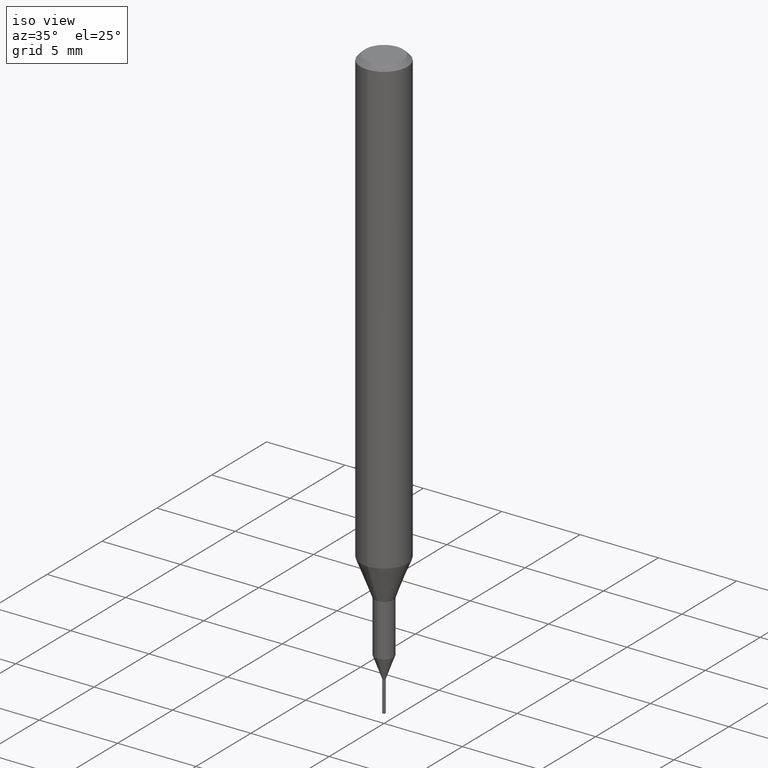
[diagram: clean part render]
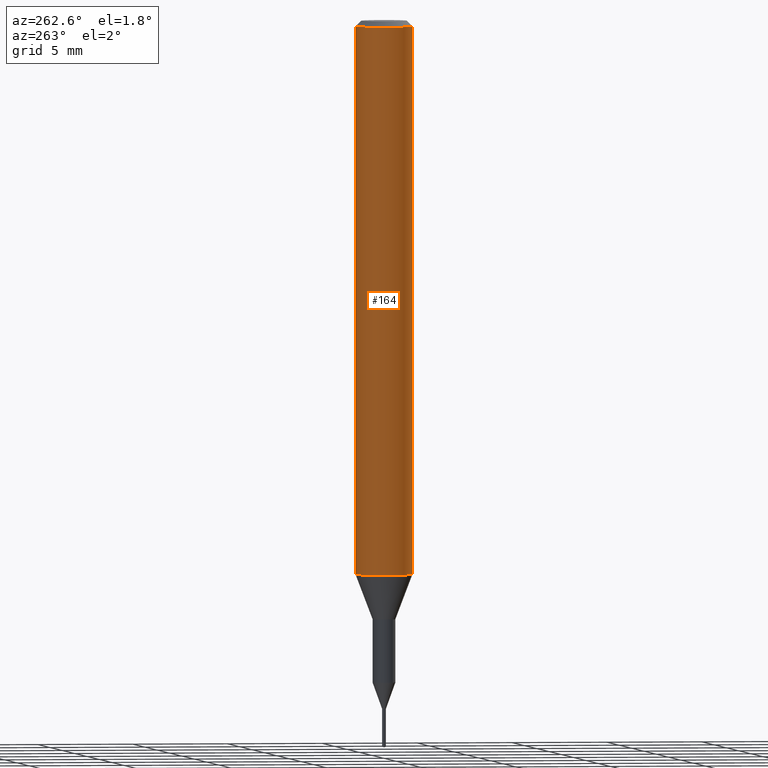
[diagram: tour spotlight — one face highlighted and labeled with its STEP entity id]
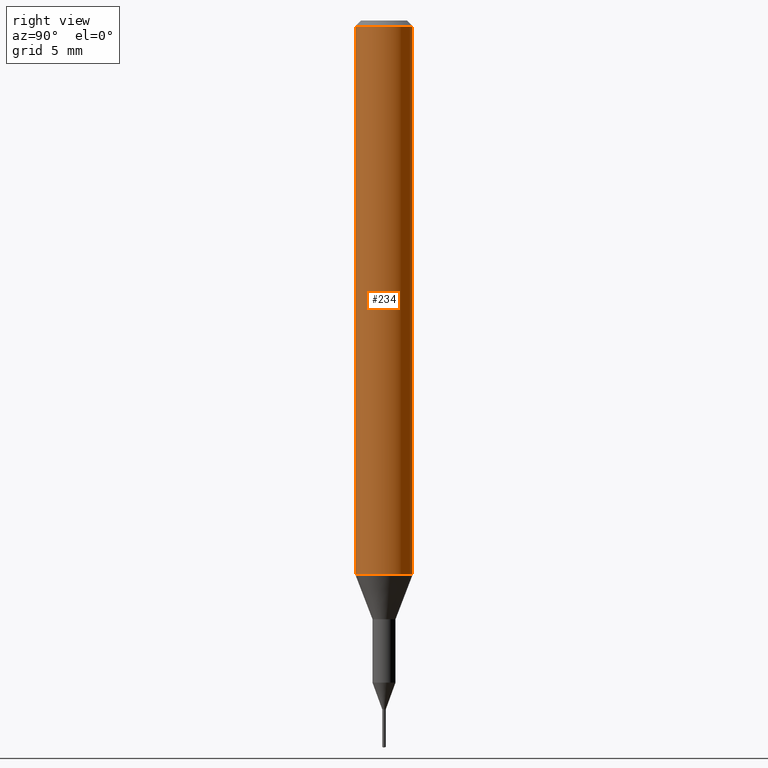
[diagram: tour spotlight — one face highlighted and labeled with its STEP entity id]
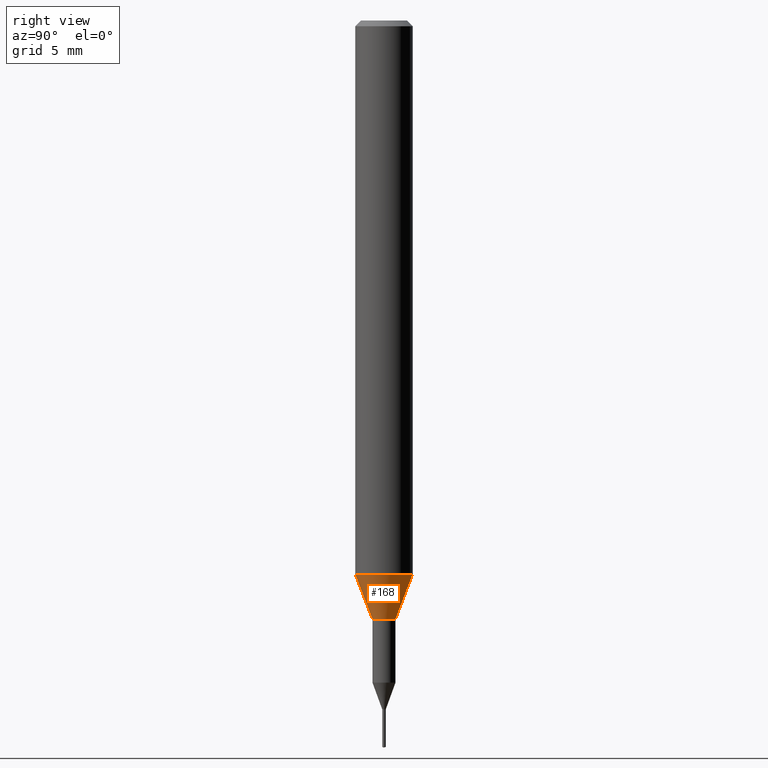
[diagram: tour spotlight — one face highlighted and labeled with its STEP entity id]
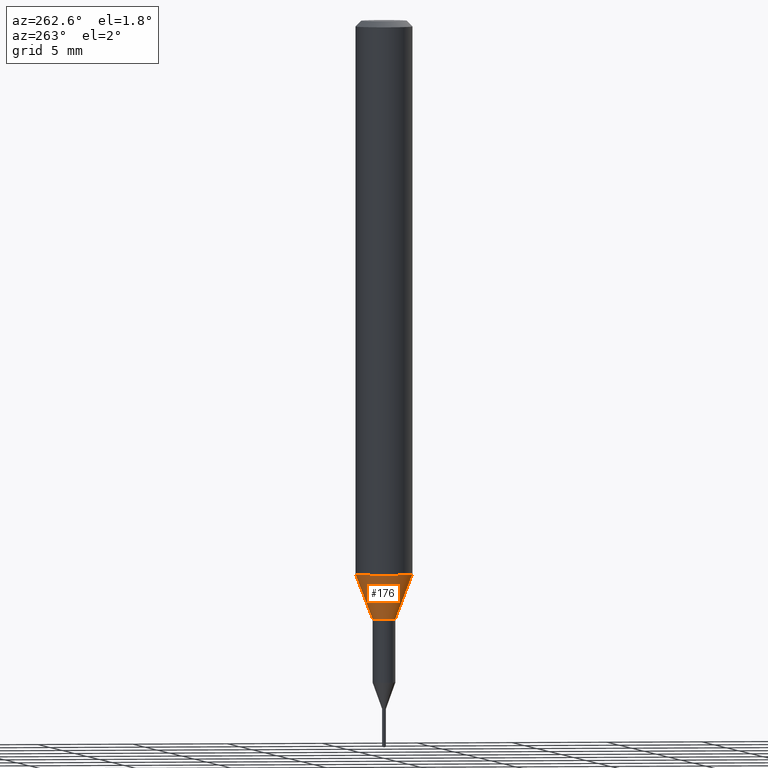
[diagram: tour spotlight — one face highlighted and labeled with its STEP entity id]
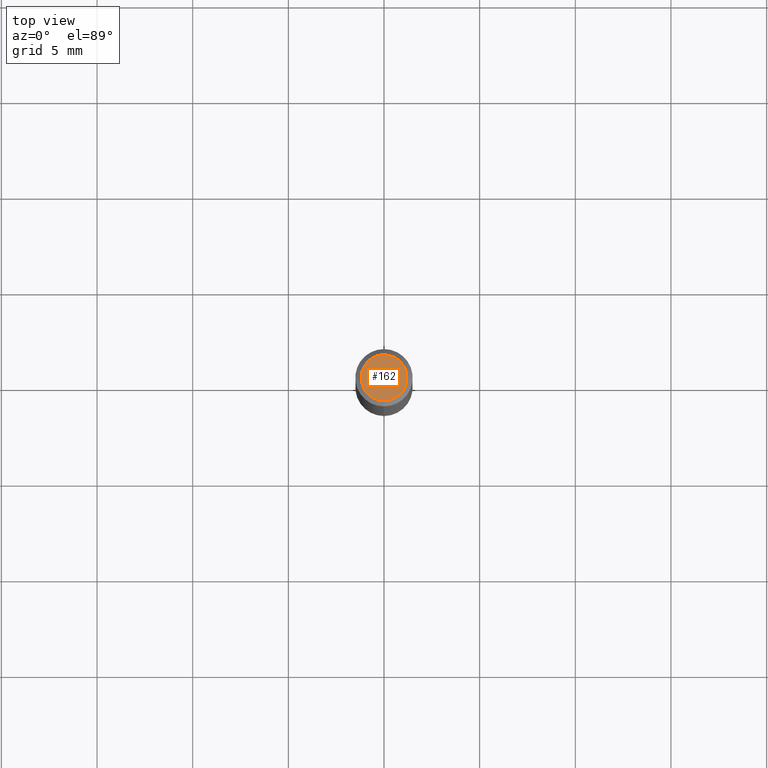
[diagram: tour spotlight — one face highlighted and labeled with its STEP entity id]
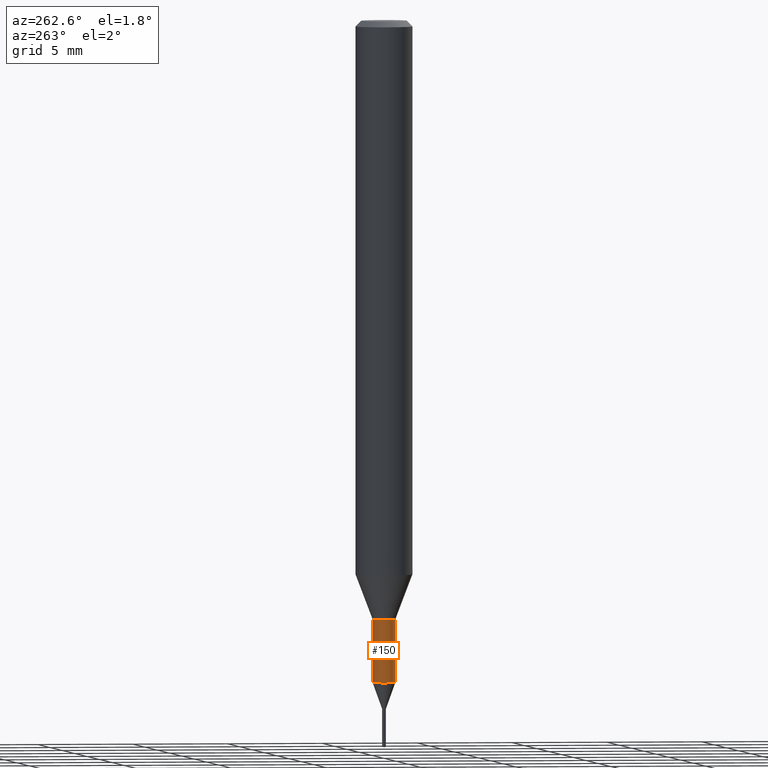
[diagram: tour spotlight — one face highlighted and labeled with its STEP entity id]
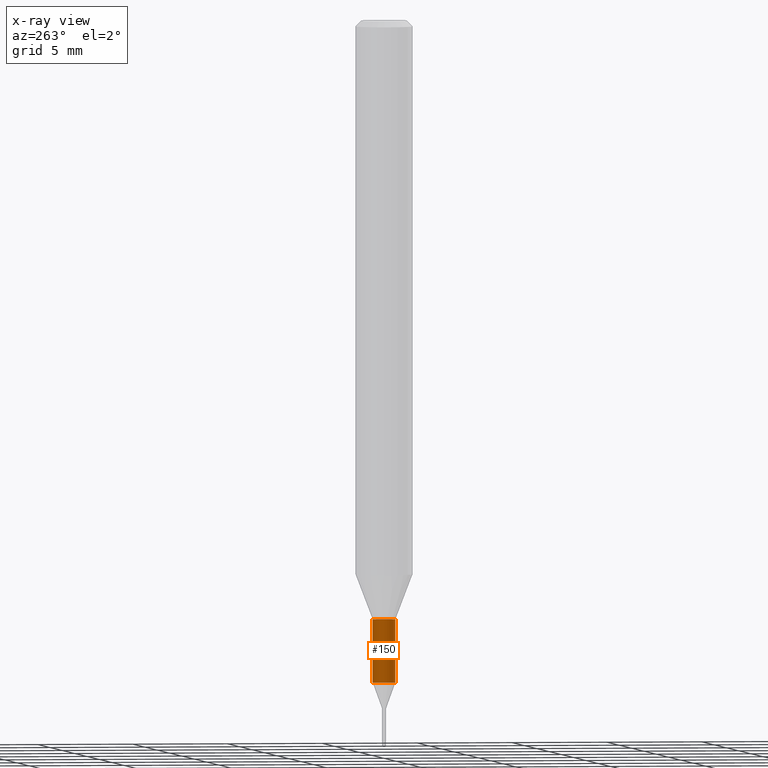
[diagram: x-ray of the same camera — body ghosted, this tour face saturated]
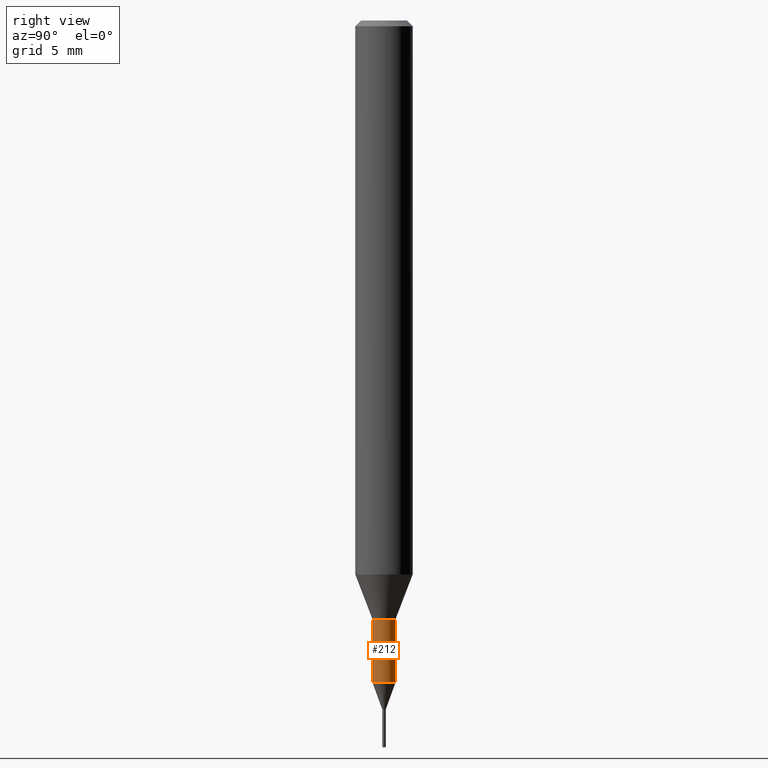
[diagram: tour spotlight — one face highlighted and labeled with its STEP entity id]
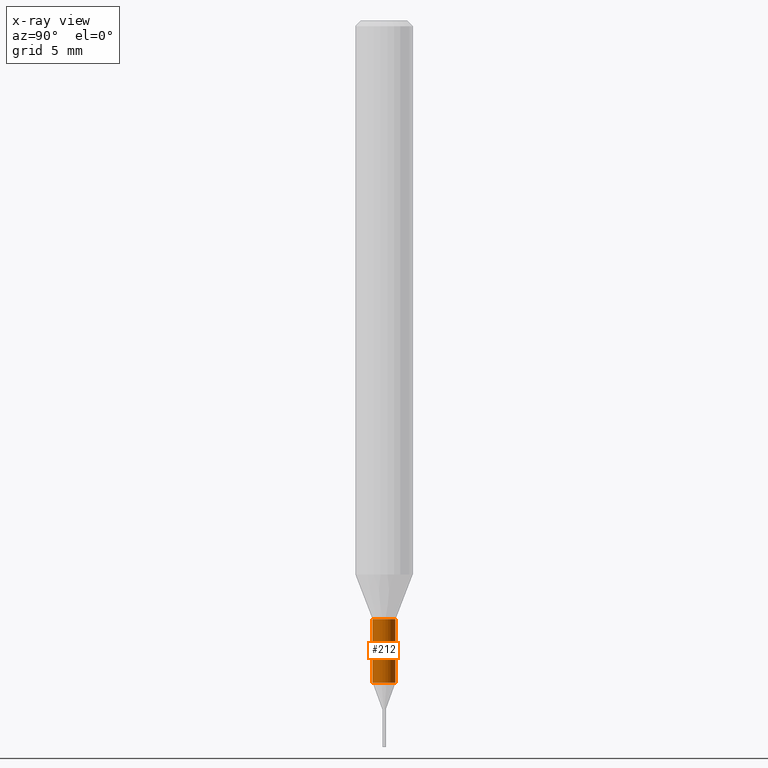
[diagram: x-ray of the same camera — body ghosted, this tour face saturated]
A machine part: a face-by-face anatomy tour. The part has 20 B-rep faces; the first image is the clean iso view, then the 7 largest visible faces are spotlighted one at a time (largest first), each with its STEP entity span.

Face 1 — auxiliary view, entity #164. In plain terms, the highlighted cylindrical surface (edge-blend (fillet) strip) has radius 1.5 mm, axis along (-0, -0, 1).
Definition (entity closure, byte-faithful):
#122=VERTEX_POINT('',#299);
#152=EDGE_CURVE('',#238,#122,#334,.T.);
#164=ADVANCED_FACE('',(#347),#348,.T.);
#188=EDGE_CURVE('',#214,#260,#375,.T.);
#204=EDGE_CURVE('',#214,#238,#393,.T.);
#214=VERTEX_POINT('',#404);
#216=EDGE_CURVE('',#122,#260,#406,.T.);
#238=VERTEX_POINT('',#431);
#260=VERTEX_POINT('',#458);
#299=CARTESIAN_POINT('',(0.0,1.5,-0.300000000000001));
#334=CIRCLE('',#538,1.5);
#347=FACE_OUTER_BOUND('',#552,.T.);
#348=CYLINDRICAL_SURFACE('',#553,1.5);
#375=CIRCLE('',#588,1.5);
#393=LINE('',#612,#613);
#404=CARTESIAN_POINT('',(1.83690953073357E-016,-1.5,-28.955));
#406=LINE('',#630,#631);
#431=CARTESIAN_POINT('',(1.83690953073357E-016,-1.5,-0.300000000000001));
#458=CARTESIAN_POINT('',(0.0,1.5,-28.955));
#538=AXIS2_PLACEMENT_3D('',#758,#759,#760);
#552=EDGE_LOOP('',(#771,#772,#773,#774));
#553=AXIS2_PLACEMENT_3D('',#775,#776,#777);
#588=AXIS2_PLACEMENT_3D('',#817,#818,#819);
#612=CARTESIAN_POINT('',(1.83690953073357E-016,-1.5,-14.6275));
#613=VECTOR('',#839,1.0);
#630=CARTESIAN_POINT('',(-1.83690953073357E-016,1.5,-14.6275));
#631=VECTOR('',#852,1.0);
#758=CARTESIAN_POINT('',(0.0,0.0,-0.300000000000001));
#759=DIRECTION('',(0.0,0.0,-1.0));
#760=DIRECTION('',(0.0,1.0,0.0));
#771=ORIENTED_EDGE('',*,*,#216,.T.);
#772=ORIENTED_EDGE('',*,*,#188,.F.);
#773=ORIENTED_EDGE('',*,*,#204,.T.);
#774=ORIENTED_EDGE('',*,*,#152,.T.);
#775=CARTESIAN_POINT('',(0.0,0.0,-14.6275));
#776=DIRECTION('',(-0.0,-0.0,1.0));
#777=DIRECTION('',(0.0,1.0,0.0));
#817=CARTESIAN_POINT('',(0.0,0.0,-28.955));
#818=DIRECTION('',(0.0,0.0,-1.0));
#819=DIRECTION('',(0.0,1.0,0.0));
#839=DIRECTION('',(-0.0,-0.0,1.0));
#852=DIRECTION('',(0.0,0.0,-1.0));

Face 2 — right view, entity #234. In plain terms, the highlighted cylindrical surface (edge-blend (fillet) strip) has radius 1.5 mm, axis along (-0, -0, 1).
Definition (entity closure, byte-faithful):
#122=VERTEX_POINT('',#299);
#160=EDGE_CURVE('',#122,#238,#342,.T.);
#166=EDGE_CURVE('',#260,#214,#350,.T.);
#204=EDGE_CURVE('',#214,#238,#393,.T.);
#214=VERTEX_POINT('',#404);
#216=EDGE_CURVE('',#122,#260,#406,.T.);
#234=ADVANCED_FACE('',(#426),#427,.T.);
#238=VERTEX_POINT('',#431);
#260=VERTEX_POINT('',#458);
#299=CARTESIAN_POINT('',(0.0,1.5,-0.300000000000001));
#342=CIRCLE('',#547,1.5);
#350=CIRCLE('',#556,1.5);
#393=LINE('',#612,#613);
#404=CARTESIAN_POINT('',(1.83690953073357E-016,-1.5,-28.955));
#406=LINE('',#630,#631);
#426=FACE_OUTER_BOUND('',#658,.T.);
#427=CYLINDRICAL_SURFACE('',#659,1.5);
#431=CARTESIAN_POINT('',(1.83690953073357E-016,-1.5,-0.300000000000001));
#458=CARTESIAN_POINT('',(0.0,1.5,-28.955));
#547=AXIS2_PLACEMENT_3D('',#761,#762,#763);
#556=AXIS2_PLACEMENT_3D('',#778,#779,#780);
#612=CARTESIAN_POINT('',(1.83690953073357E-016,-1.5,-14.6275));
#613=VECTOR('',#839,1.0);
#630=CARTESIAN_POINT('',(-1.83690953073357E-016,1.5,-14.6275));
#631=VECTOR('',#852,1.0);
#658=EDGE_LOOP('',(#876,#877,#878,#879));
#659=AXIS2_PLACEMENT_3D('',#880,#881,#882);
#761=CARTESIAN_POINT('',(0.0,0.0,-0.300000000000001));
#762=DIRECTION('',(0.0,0.0,-1.0));
#763=DIRECTION('',(0.0,1.0,0.0));
#778=CARTESIAN_POINT('',(0.0,0.0,-28.955));
#779=DIRECTION('',(0.0,0.0,-1.0));
#780=DIRECTION('',(0.0,1.0,0.0));
#839=DIRECTION('',(-0.0,-0.0,1.0));
#852=DIRECTION('',(0.0,0.0,-1.0));
#876=ORIENTED_EDGE('',*,*,#216,.F.);
#877=ORIENTED_EDGE('',*,*,#160,.T.);
#878=ORIENTED_EDGE('',*,*,#204,.F.);
#879=ORIENTED_EDGE('',*,*,#166,.F.);
#880=CARTESIAN_POINT('',(0.0,0.0,-14.6275));
#881=DIRECTION('',(-0.0,-0.0,1.0));
#882=DIRECTION('',(0.0,1.0,0.0));

Face 3 — right view, entity #168. In plain terms, the highlighted conical surface has half-angle 20.997 deg.
Definition (entity closure, byte-faithful):
#128=EDGE_CURVE('',#148,#136,#305,.T.);
#136=VERTEX_POINT('',#315);
#148=VERTEX_POINT('',#329);
#166=EDGE_CURVE('',#260,#214,#350,.T.);
#168=ADVANCED_FACE('',(#352),#353,.T.);
#184=EDGE_CURVE('',#136,#214,#370,.T.);
#210=EDGE_CURVE('',#260,#148,#399,.T.);
#214=VERTEX_POINT('',#404);
#260=VERTEX_POINT('',#458);
#305=CIRCLE('',#503,0.6);
#315=CARTESIAN_POINT('',(7.34763812293426E-017,-0.6,-31.3));
#329=CARTESIAN_POINT('',(0.0,0.6,-31.3));
#350=CIRCLE('',#556,1.5);
#352=FACE_OUTER_BOUND('',#558,.T.);
#353=CONICAL_SURFACE('',#559,1.05,0.366459241971866);
#370=LINE('',#581,#582);
#399=LINE('',#621,#622);
#404=CARTESIAN_POINT('',(1.83690953073357E-016,-1.5,-28.955));
#458=CARTESIAN_POINT('',(0.0,1.5,-28.955));
#503=AXIS2_PLACEMENT_3D('',#719,#720,#721);
#556=AXIS2_PLACEMENT_3D('',#778,#779,#780);
#558=EDGE_LOOP('',(#782,#783,#784,#785));
#559=AXIS2_PLACEMENT_3D('',#786,#787,#788);
#581=CARTESIAN_POINT('',(1.2858366715135E-016,-1.05,-30.1275));
#582=VECTOR('',#808,1.0);
#621=CARTESIAN_POINT('',(-1.2858366715135E-016,1.05,-30.1275));
#622=VECTOR('',#843,1.0);
#719=CARTESIAN_POINT('',(0.0,0.0,-31.3));
#720=DIRECTION('',(0.0,0.0,-1.0));
#721=DIRECTION('',(0.0,1.0,0.0));
#778=CARTESIAN_POINT('',(0.0,0.0,-28.955));
#779=DIRECTION('',(0.0,0.0,-1.0));
#780=DIRECTION('',(0.0,1.0,0.0));
#782=ORIENTED_EDGE('',*,*,#210,.F.);
#783=ORIENTED_EDGE('',*,*,#166,.T.);
#784=ORIENTED_EDGE('',*,*,#184,.F.);
#785=ORIENTED_EDGE('',*,*,#128,.F.);
#786=CARTESIAN_POINT('',(0.0,0.0,-30.1275));
#787=DIRECTION('',(-0.0,-0.0,1.0));
#788=DIRECTION('',(0.0,1.0,0.0));
#808=DIRECTION('',(4.38791184365088E-017,-0.358312026550805,0.93360189140182));
#843=DIRECTION('',(4.38791184365088E-017,-0.358312026550805,-0.93360189140182));

Face 4 — auxiliary view, entity #176. In plain terms, the highlighted conical surface has half-angle 20.997 deg.
Definition (entity closure, byte-faithful):
#136=VERTEX_POINT('',#315);
#148=VERTEX_POINT('',#329);
#176=ADVANCED_FACE('',(#361),#362,.T.);
#184=EDGE_CURVE('',#136,#214,#370,.T.);
#188=EDGE_CURVE('',#214,#260,#375,.T.);
#210=EDGE_CURVE('',#260,#148,#399,.T.);
#214=VERTEX_POINT('',#404);
#260=VERTEX_POINT('',#458);
#266=EDGE_CURVE('',#136,#148,#464,.T.);
#315=CARTESIAN_POINT('',(7.34763812293426E-017,-0.6,-31.3));
#329=CARTESIAN_POINT('',(0.0,0.6,-31.3));
#361=FACE_OUTER_BOUND('',#571,.T.);
#362=CONICAL_SURFACE('',#572,1.05,0.366459241971866);
#370=LINE('',#581,#582);
#375=CIRCLE('',#588,1.5);
#399=LINE('',#621,#622);
#404=CARTESIAN_POINT('',(1.83690953073357E-016,-1.5,-28.955));
#458=CARTESIAN_POINT('',(0.0,1.5,-28.955));
#464=CIRCLE('',#703,0.6);
#571=EDGE_LOOP('',(#797,#798,#799,#800));
#572=AXIS2_PLACEMENT_3D('',#801,#802,#803);
#581=CARTESIAN_POINT('',(1.2858366715135E-016,-1.05,-30.1275));
#582=VECTOR('',#808,1.0);
#588=AXIS2_PLACEMENT_3D('',#817,#818,#819);
#621=CARTESIAN_POINT('',(-1.2858366715135E-016,1.05,-30.1275));
#622=VECTOR('',#843,1.0);
#703=AXIS2_PLACEMENT_3D('',#932,#933,#934);
#797=ORIENTED_EDGE('',*,*,#210,.T.);
#798=ORIENTED_EDGE('',*,*,#266,.F.);
#799=ORIENTED_EDGE('',*,*,#184,.T.);
#800=ORIENTED_EDGE('',*,*,#188,.T.);
#801=CARTESIAN_POINT('',(0.0,0.0,-30.1275));
#802=DIRECTION('',(-0.0,-0.0,1.0));
#803=DIRECTION('',(0.0,1.0,0.0));
#808=DIRECTION('',(4.38791184365088E-017,-0.358312026550805,0.93360189140182));
#817=CARTESIAN_POINT('',(0.0,0.0,-28.955));
#818=DIRECTION('',(0.0,0.0,-1.0));
#819=DIRECTION('',(0.0,1.0,0.0));
#843=DIRECTION('',(4.38791184365088E-017,-0.358312026550805,-0.93360189140182));
#932=CARTESIAN_POINT('',(0.0,0.0,-31.3));
#933=DIRECTION('',(0.0,0.0,-1.0));
#934=DIRECTION('',(0.0,1.0,0.0));

Face 5 — top view, entity #162. In plain terms, the highlighted planar face has unit normal (-0, 0, 1).
Definition (entity closure, byte-faithful):
#118=VERTEX_POINT('',#295);
#138=EDGE_CURVE('',#264,#118,#317,.T.);
#162=ADVANCED_FACE('',(#344),#345,.T.);
#264=VERTEX_POINT('',#462);
#268=EDGE_CURVE('',#118,#264,#466,.T.);
#295=CARTESIAN_POINT('',(1.46952762458685E-016,-1.2,0.0));
#317=CIRCLE('',#518,1.2);
#344=FACE_OUTER_BOUND('',#549,.T.);
#345=PLANE('',#550);
#462=CARTESIAN_POINT('',(0.0,1.2,0.0));
#466=CIRCLE('',#706,1.2);
#518=AXIS2_PLACEMENT_3D('',#731,#732,#733);
#549=EDGE_LOOP('',(#765,#766));
#550=AXIS2_PLACEMENT_3D('',#767,#768,#769);
#706=AXIS2_PLACEMENT_3D('',#935,#936,#937);
#731=CARTESIAN_POINT('',(0.0,0.0,0.0));
#732=DIRECTION('',(0.0,0.0,-1.0));
#733=DIRECTION('',(0.0,1.0,0.0));
#765=ORIENTED_EDGE('',*,*,#138,.F.);
#766=ORIENTED_EDGE('',*,*,#268,.F.);
#767=CARTESIAN_POINT('',(0.0,0.6,0.0));
#768=DIRECTION('',(-0.0,0.0,1.0));
#769=DIRECTION('',(0.0,-1.0,0.0));
#935=CARTESIAN_POINT('',(0.0,0.0,0.0));
#936=DIRECTION('',(0.0,0.0,-1.0));
#937=DIRECTION('',(0.0,1.0,0.0));

Face 6 — auxiliary view, entity #150. An x-ray twin of the same camera follows (body ghosted, this face saturated) — the face is partly hidden behind the body. In plain terms, the highlighted cylindrical surface (edge-blend (fillet) strip) has radius 0.5999 mm, axis along (-0, -0, 1).
Definition (entity closure, byte-faithful):
#150=ADVANCED_FACE('',(#331),#332,.T.);
#154=VERTEX_POINT('',#336);
#158=VERTEX_POINT('',#340);
#200=EDGE_CURVE('',#230,#154,#389,.T.);
#218=EDGE_CURVE('',#236,#230,#408,.T.);
#230=VERTEX_POINT('',#421);
#236=VERTEX_POINT('',#429);
#240=EDGE_CURVE('',#158,#154,#433,.T.);
#262=EDGE_CURVE('',#158,#236,#460,.T.);
#331=FACE_OUTER_BOUND('',#534,.T.);
#332=CYLINDRICAL_SURFACE('',#535,0.59995);
#336=CARTESIAN_POINT('',(0.0,0.59995,-34.613));
#340=CARTESIAN_POINT('',(7.34702581975735E-017,-0.59995,-34.613));
#389=LINE('',#604,#605);
#408=CIRCLE('',#634,0.59995);
#421=CARTESIAN_POINT('',(0.0,0.59995,-31.3));
#429=CARTESIAN_POINT('',(7.34702581975735E-017,-0.59995,-31.3));
#433=CIRCLE('',#666,0.59995);
#460=LINE('',#697,#698);
#534=EDGE_LOOP('',(#751,#752,#753,#754));
#535=AXIS2_PLACEMENT_3D('',#755,#756,#757);
#604=CARTESIAN_POINT('',(-7.34702581975735E-017,0.59995,-32.9565));
#605=VECTOR('',#837,1.0);
#634=AXIS2_PLACEMENT_3D('',#853,#854,#855);
#666=AXIS2_PLACEMENT_3D('',#883,#884,#885);
#697=CARTESIAN_POINT('',(7.34702581975735E-017,-0.59995,-32.9565));
#698=VECTOR('',#931,1.0);
#751=ORIENTED_EDGE('',*,*,#200,.T.);
#752=ORIENTED_EDGE('',*,*,#240,.F.);
#753=ORIENTED_EDGE('',*,*,#262,.T.);
#754=ORIENTED_EDGE('',*,*,#218,.T.);
#755=CARTESIAN_POINT('',(0.0,0.0,-32.9565));
#756=DIRECTION('',(-0.0,-0.0,1.0));
#757=DIRECTION('',(0.0,1.0,0.0));
#837=DIRECTION('',(0.0,0.0,-1.0));
#853=CARTESIAN_POINT('',(0.0,0.0,-31.3));
#854=DIRECTION('',(0.0,0.0,-1.0));
#855=DIRECTION('',(0.0,1.0,0.0));
#883=CARTESIAN_POINT('',(0.0,0.0,-34.613));
#884=DIRECTION('',(0.0,0.0,-1.0));
#885=DIRECTION('',(0.0,1.0,0.0));
#931=DIRECTION('',(-0.0,-0.0,1.0));

Face 7 — right view, entity #212. An x-ray twin of the same camera follows (body ghosted, this face saturated) — the face is partly hidden behind the body. In plain terms, the highlighted cylindrical surface (edge-blend (fillet) strip) has radius 0.5999 mm, axis along (-0, -0, 1).
Definition (entity closure, byte-faithful):
#154=VERTEX_POINT('',#336);
#158=VERTEX_POINT('',#340);
#174=EDGE_CURVE('',#154,#158,#359,.T.);
#200=EDGE_CURVE('',#230,#154,#389,.T.);
#208=EDGE_CURVE('',#230,#236,#397,.T.);
#212=ADVANCED_FACE('',(#401),#402,.T.);
#230=VERTEX_POINT('',#421);
#236=VERTEX_POINT('',#429);
#262=EDGE_CURVE('',#158,#236,#460,.T.);
#336=CARTESIAN_POINT('',(0.0,0.59995,-34.613));
#340=CARTESIAN_POINT('',(7.34702581975735E-017,-0.59995,-34.613));
#359=CIRCLE('',#569,0.59995);
#389=LINE('',#604,#605);
#397=CIRCLE('',#618,0.59995);
#401=FACE_OUTER_BOUND('',#624,.T.);
#402=CYLINDRICAL_SURFACE('',#625,0.59995);
#421=CARTESIAN_POINT('',(0.0,0.59995,-31.3));
#429=CARTESIAN_POINT('',(7.34702581975735E-017,-0.59995,-31.3));
#460=LINE('',#697,#698);
#569=AXIS2_PLACEMENT_3D('',#793,#794,#795);
#604=CARTESIAN_POINT('',(-7.34702581975735E-017,0.59995,-32.9565));
#605=VECTOR('',#837,1.0);
#618=AXIS2_PLACEMENT_3D('',#840,#841,#842);
#624=EDGE_LOOP('',(#845,#846,#847,#848));
#625=AXIS2_PLACEMENT_3D('',#849,#850,#851);
#697=CARTESIAN_POINT('',(7.34702581975735E-017,-0.59995,-32.9565));
#698=VECTOR('',#931,1.0);
#793=CARTESIAN_POINT('',(0.0,0.0,-34.613));
#794=DIRECTION('',(0.0,0.0,-1.0));
#795=DIRECTION('',(0.0,1.0,0.0));
#837=DIRECTION('',(0.0,0.0,-1.0));
#840=CARTESIAN_POINT('',(0.0,0.0,-31.3));
#841=DIRECTION('',(0.0,0.0,-1.0));
#842=DIRECTION('',(0.0,1.0,0.0));
#845=ORIENTED_EDGE('',*,*,#200,.F.);
#846=ORIENTED_EDGE('',*,*,#208,.T.);
#847=ORIENTED_EDGE('',*,*,#262,.F.);
#848=ORIENTED_EDGE('',*,*,#174,.F.);
#849=CARTESIAN_POINT('',(0.0,0.0,-32.9565));
#850=DIRECTION('',(-0.0,-0.0,1.0));
#851=DIRECTION('',(0.0,1.0,0.0));
#931=DIRECTION('',(-0.0,-0.0,1.0));